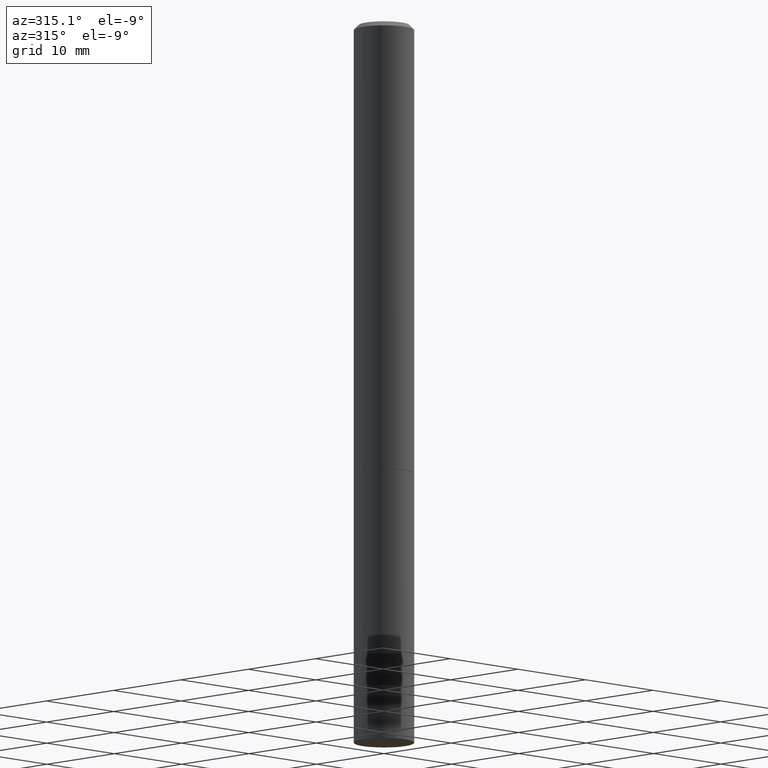
[diagram: clean part render]
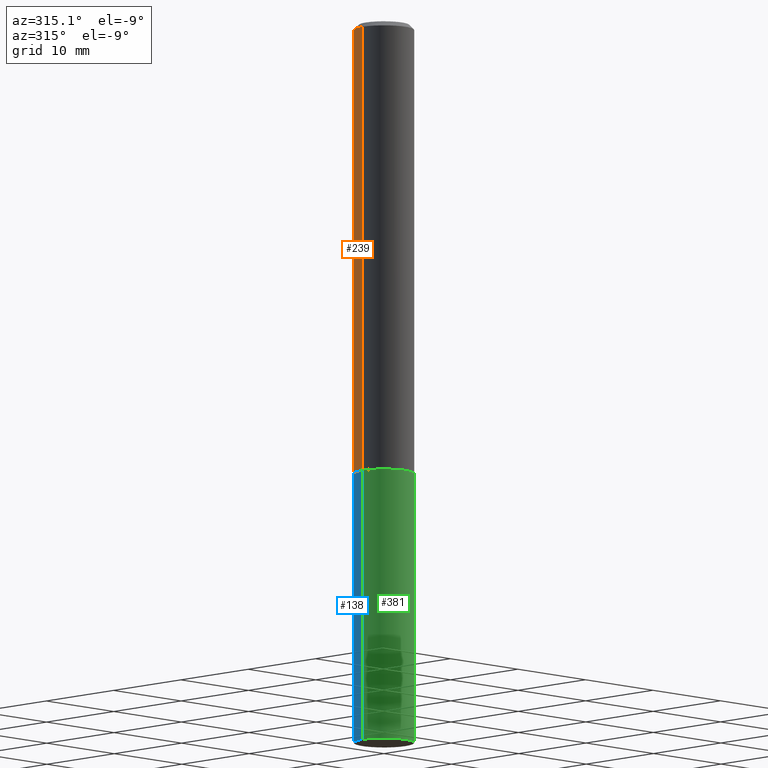
[diagram: same view with three faces highlighted in distinct colors, each labeled with its STEP entity id]
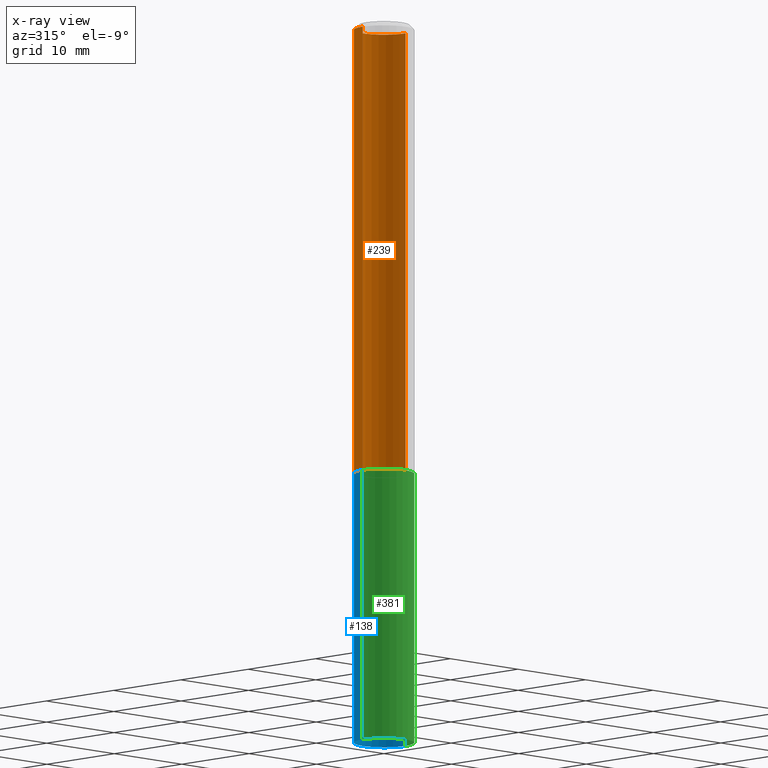
[diagram: x-ray of the same camera — body ghosted, the three highlighted faces saturated]
A machine part, auxiliary view with three faces highlighted in distinct colors.
The next image is the same camera in x-ray (body ghosted, the three faces saturated) — at least one of them is partly hidden behind the body in this view.
Their STEP definitions:

[orange] entity #239 — the highlighted cylindrical surface (edge-blend (fillet) strip) has radius 3.175 mm, axis along (-0, 0, 1).
#3 = CARTESIAN_POINT ( 'NONE',  ( 0.1249999999999998751, -8.728703347107825500E-16, 6.095220969744913435E-30 ) ) ;
#22 = CARTESIAN_POINT ( 'NONE',  ( -0.1249999999999998751, 8.881784197001243449E-16, -6.148668862818626622E-30 ) ) ;
#25 = CYLINDRICAL_SURFACE ( 'NONE', #360, 0.1249999999999998751 ) ;
#55 = VERTEX_POINT ( 'NONE', #356 ) ;
#59 = VECTOR ( 'NONE', #182, 39.37007874015748143 ) ;
#73 = VERTEX_POINT ( 'NONE', #117 ) ;
#82 = ORIENTED_EDGE ( 'NONE', *, *, #322, .T. ) ;
#90 = ORIENTED_EDGE ( 'NONE', *, *, #376, .F. ) ;
#93 = CARTESIAN_POINT ( 'NONE',  ( 0.1250000000000000000, -7.415906363702839039E-15, -1.874000000000000110 ) ) ;
#98 = EDGE_CURVE ( 'NONE', #73, #124, #328, .T. ) ;
#106 = EDGE_LOOP ( 'NONE', ( #82, #152, #90, #383 ) ) ;
#117 = CARTESIAN_POINT ( 'NONE',  ( -0.1250000000000000000, -2.418254408184330717E-15, -1.874000000000000110 ) ) ;
#124 = VERTEX_POINT ( 'NONE', #275 ) ;
#135 = AXIS2_PLACEMENT_3D ( 'NONE', #256, #150, #157 ) ;
#150 = DIRECTION ( 'NONE',  ( -2.445468806185136597E-29, 3.491481338843145583E-15, 1.000000000000000000 ) ) ;
#151 = FACE_OUTER_BOUND ( 'NONE', #106, .T. ) ;
#152 = ORIENTED_EDGE ( 'NONE', *, *, #98, .T. ) ;
#153 = DIRECTION ( 'NONE',  ( 1.000000000000000000, -6.982962677686270655E-15, 0.000000000000000000 ) ) ;
#157 = DIRECTION ( 'NONE',  ( 1.000000000000000000, -6.982962677686266711E-15, 0.000000000000000000 ) ) ;
#162 = CIRCLE ( 'NONE', #212, 0.1250000000000000000 ) ;
#182 = DIRECTION ( 'NONE',  ( -2.445468806185136877E-29, 3.491481338843145188E-15, 1.000000000000000000 ) ) ;
#187 = CARTESIAN_POINT ( 'NONE',  ( 0.000000000000000000, 0.000000000000000000, 0.000000000000000000 ) ) ;
#212 = AXIS2_PLACEMENT_3D ( 'NONE', #312, #286, #153 ) ;
#239 = ADVANCED_FACE ( 'NONE', ( #151 ), #25, .T. ) ;
#252 = LINE ( 'NONE', #3, #59 ) ;
#256 = CARTESIAN_POINT ( 'NONE',  ( 4.890937612370279289E-31, -6.982962677686299005E-17, -0.02000000000000002470 ) ) ;
#258 = EDGE_CURVE ( 'NONE', #366, #55, #252, .T. ) ;
#275 = CARTESIAN_POINT ( 'NONE',  ( -0.1249999999999997641, 8.030407079339186601E-16, -0.02000000000000002470 ) ) ;
#281 = DIRECTION ( 'NONE',  ( 1.000000000000000000, -6.982962677686267499E-15, 4.876176775795935793E-29 ) ) ;
#286 = DIRECTION ( 'NONE',  ( -2.445468806185136597E-29, 3.491481338843145583E-15, 1.000000000000000000 ) ) ;
#295 = DIRECTION ( 'NONE',  ( -2.445468806185136877E-29, 3.491481338843145188E-15, 1.000000000000000000 ) ) ;
#306 = CIRCLE ( 'NONE', #135, 0.1249999999999997641 ) ;
#312 = CARTESIAN_POINT ( 'NONE',  ( 4.582808542790945516E-29, -6.543036028992054911E-15, -1.874000000000000110 ) ) ;
#321 = VECTOR ( 'NONE', #295, 39.37007874015748143 ) ;
#322 = EDGE_CURVE ( 'NONE', #366, #73, #162, .T. ) ;
#328 = LINE ( 'NONE', #22, #321 ) ;
#336 = DIRECTION ( 'NONE',  ( -2.445468806185136597E-29, 3.491481338843145583E-15, 1.000000000000000000 ) ) ;
#356 = CARTESIAN_POINT ( 'NONE',  ( 0.1249999999999997641, -9.273918764983027713E-16, -0.02000000000000002470 ) ) ;
#360 = AXIS2_PLACEMENT_3D ( 'NONE', #187, #336, #281 ) ;
#366 = VERTEX_POINT ( 'NONE', #93 ) ;
#376 = EDGE_CURVE ( 'NONE', #55, #124, #306, .T. ) ;
#383 = ORIENTED_EDGE ( 'NONE', *, *, #258, .F. ) ;

[blue] entity #138 — the highlighted cylindrical surface (edge-blend (fillet) strip) has radius 3.175 mm, axis along (-0, 0, 1).
#12 = EDGE_CURVE ( 'NONE', #108, #20, #263, .T. ) ;
#16 = CARTESIAN_POINT ( 'NONE',  ( 0.1249999999999997918, -1.133200626625087780E-14, -3.000000000000000444 ) ) ;
#17 = DIRECTION ( 'NONE',  ( -2.445468806185136597E-29, 3.491481338843145583E-15, 1.000000000000000000 ) ) ;
#20 = VERTEX_POINT ( 'NONE', #206 ) ;
#23 = EDGE_LOOP ( 'NONE', ( #36, #183, #211, #337 ) ) ;
#36 = ORIENTED_EDGE ( 'NONE', *, *, #12, .T. ) ;
#48 = FACE_OUTER_BOUND ( 'NONE', #23, .T. ) ;
#54 = CARTESIAN_POINT ( 'NONE',  ( -0.1250000000000000000, 8.881784197001252323E-16, -6.148668862818632227E-30 ) ) ;
#61 = VERTEX_POINT ( 'NONE', #171 ) ;
#62 = AXIS2_PLACEMENT_3D ( 'NONE', #169, #17, #271 ) ;
#69 = VECTOR ( 'NONE', #141, 39.37007874015748143 ) ;
#81 = LINE ( 'NONE', #329, #69 ) ;
#84 = CIRCLE ( 'NONE', #62, 0.1250000000000000000 ) ;
#86 = EDGE_CURVE ( 'NONE', #61, #351, #84, .T. ) ;
#87 = CYLINDRICAL_SURFACE ( 'NONE', #233, 0.1250000000000000000 ) ;
#92 = AXIS2_PLACEMENT_3D ( 'NONE', #168, #242, #237 ) ;
#108 = VERTEX_POINT ( 'NONE', #16 ) ;
#114 = DIRECTION ( 'NONE',  ( 1.000000000000000000, -6.982962677686266711E-15, 4.876176775795935793E-29 ) ) ;
#125 = EDGE_CURVE ( 'NONE', #20, #351, #144, .T. ) ;
#138 = ADVANCED_FACE ( 'NONE', ( #48 ), #87, .T. ) ;
#140 = DIRECTION ( 'NONE',  ( -2.445468806185136597E-29, 3.491481338843145583E-15, 1.000000000000000000 ) ) ;
#141 = DIRECTION ( 'NONE',  ( -2.445468806185136877E-29, 3.491481338843145188E-15, 1.000000000000000000 ) ) ;
#144 = LINE ( 'NONE', #54, #314 ) ;
#165 = EDGE_CURVE ( 'NONE', #108, #61, #81, .T. ) ;
#168 = CARTESIAN_POINT ( 'NONE',  ( 7.336406418555409790E-29, -1.047444401652943635E-14, -3.000000000000000444 ) ) ;
#169 = CARTESIAN_POINT ( 'NONE',  ( 4.585254011597131119E-29, -6.546527510330898707E-15, -1.875000000000000000 ) ) ;
#171 = CARTESIAN_POINT ( 'NONE',  ( 0.1250000000000000000, -7.419397845041682046E-15, -1.875000000000000000 ) ) ;
#183 = ORIENTED_EDGE ( 'NONE', *, *, #125, .T. ) ;
#199 = DIRECTION ( 'NONE',  ( -2.445468806185136877E-29, 3.491481338843145188E-15, 1.000000000000000000 ) ) ;
#206 = CARTESIAN_POINT ( 'NONE',  ( -0.1249999999999997918, -9.601573681818656170E-15, -3.000000000000000444 ) ) ;
#211 = ORIENTED_EDGE ( 'NONE', *, *, #86, .F. ) ;
#233 = AXIS2_PLACEMENT_3D ( 'NONE', #238, #140, #114 ) ;
#237 = DIRECTION ( 'NONE',  ( 1.000000000000000000, -6.982962677686262766E-15, 0.000000000000000000 ) ) ;
#238 = CARTESIAN_POINT ( 'NONE',  ( 0.000000000000000000, 0.000000000000000000, 0.000000000000000000 ) ) ;
#242 = DIRECTION ( 'NONE',  ( -2.445468806185136597E-29, 3.491481338843145583E-15, 1.000000000000000000 ) ) ;
#263 = CIRCLE ( 'NONE', #92, 0.1250000000000000000 ) ;
#271 = DIRECTION ( 'NONE',  ( 1.000000000000000000, -6.982962677686262766E-15, 0.000000000000000000 ) ) ;
#314 = VECTOR ( 'NONE', #199, 39.37007874015748143 ) ;
#329 = CARTESIAN_POINT ( 'NONE',  ( 0.1250000000000000000, -8.728703347107833388E-16, 6.095220969744919741E-30 ) ) ;
#337 = ORIENTED_EDGE ( 'NONE', *, *, #165, .F. ) ;
#351 = VERTEX_POINT ( 'NONE', #363 ) ;
#363 = CARTESIAN_POINT ( 'NONE',  ( -0.1250000000000000000, -7.622307343730043087E-15, -1.875000000000000000 ) ) ;

[green] entity #381 — the highlighted cylindrical surface (edge-blend (fillet) strip) has radius 3.175 mm, axis along (-0, 0, 1).
#16 = CARTESIAN_POINT ( 'NONE',  ( 0.1249999999999997918, -1.133200626625087780E-14, -3.000000000000000444 ) ) ;
#20 = VERTEX_POINT ( 'NONE', #206 ) ;
#54 = CARTESIAN_POINT ( 'NONE',  ( -0.1250000000000000000, 8.881784197001252323E-16, -6.148668862818632227E-30 ) ) ;
#61 = VERTEX_POINT ( 'NONE', #171 ) ;
#65 = CARTESIAN_POINT ( 'NONE',  ( 7.336406418555409790E-29, -1.047444401652943635E-14, -3.000000000000000444 ) ) ;
#67 = DIRECTION ( 'NONE',  ( 1.000000000000000000, -6.982962677686266711E-15, 4.876176775795935793E-29 ) ) ;
#69 = VECTOR ( 'NONE', #141, 39.37007874015748143 ) ;
#81 = LINE ( 'NONE', #329, #69 ) ;
#95 = FACE_OUTER_BOUND ( 'NONE', #221, .T. ) ;
#104 = ORIENTED_EDGE ( 'NONE', *, *, #165, .T. ) ;
#108 = VERTEX_POINT ( 'NONE', #16 ) ;
#123 = CYLINDRICAL_SURFACE ( 'NONE', #355, 0.1250000000000000000 ) ;
#125 = EDGE_CURVE ( 'NONE', #20, #351, #144, .T. ) ;
#128 = DIRECTION ( 'NONE',  ( -2.445468806185136597E-29, 3.491481338843145583E-15, 1.000000000000000000 ) ) ;
#130 = CARTESIAN_POINT ( 'NONE',  ( 0.000000000000000000, 0.000000000000000000, 0.000000000000000000 ) ) ;
#132 = DIRECTION ( 'NONE',  ( 1.000000000000000000, -6.982962677686262766E-15, 0.000000000000000000 ) ) ;
#141 = DIRECTION ( 'NONE',  ( -2.445468806185136877E-29, 3.491481338843145188E-15, 1.000000000000000000 ) ) ;
#144 = LINE ( 'NONE', #54, #314 ) ;
#165 = EDGE_CURVE ( 'NONE', #108, #61, #81, .T. ) ;
#171 = CARTESIAN_POINT ( 'NONE',  ( 0.1250000000000000000, -7.419397845041682046E-15, -1.875000000000000000 ) ) ;
#177 = DIRECTION ( 'NONE',  ( 1.000000000000000000, -6.982962677686262766E-15, 0.000000000000000000 ) ) ;
#186 = CIRCLE ( 'NONE', #284, 0.1250000000000000000 ) ;
#193 = CIRCLE ( 'NONE', #197, 0.1250000000000000000 ) ;
#197 = AXIS2_PLACEMENT_3D ( 'NONE', #65, #245, #132 ) ;
#199 = DIRECTION ( 'NONE',  ( -2.445468806185136877E-29, 3.491481338843145188E-15, 1.000000000000000000 ) ) ;
#206 = CARTESIAN_POINT ( 'NONE',  ( -0.1249999999999997918, -9.601573681818656170E-15, -3.000000000000000444 ) ) ;
#207 = EDGE_CURVE ( 'NONE', #20, #108, #193, .T. ) ;
#214 = DIRECTION ( 'NONE',  ( -2.445468806185136597E-29, 3.491481338843145583E-15, 1.000000000000000000 ) ) ;
#221 = EDGE_LOOP ( 'NONE', ( #229, #309, #104, #230 ) ) ;
#229 = ORIENTED_EDGE ( 'NONE', *, *, #125, .F. ) ;
#230 = ORIENTED_EDGE ( 'NONE', *, *, #267, .F. ) ;
#245 = DIRECTION ( 'NONE',  ( -2.445468806185136597E-29, 3.491481338843145583E-15, 1.000000000000000000 ) ) ;
#267 = EDGE_CURVE ( 'NONE', #351, #61, #186, .T. ) ;
#284 = AXIS2_PLACEMENT_3D ( 'NONE', #368, #128, #177 ) ;
#309 = ORIENTED_EDGE ( 'NONE', *, *, #207, .T. ) ;
#314 = VECTOR ( 'NONE', #199, 39.37007874015748143 ) ;
#329 = CARTESIAN_POINT ( 'NONE',  ( 0.1250000000000000000, -8.728703347107833388E-16, 6.095220969744919741E-30 ) ) ;
#351 = VERTEX_POINT ( 'NONE', #363 ) ;
#355 = AXIS2_PLACEMENT_3D ( 'NONE', #130, #214, #67 ) ;
#363 = CARTESIAN_POINT ( 'NONE',  ( -0.1250000000000000000, -7.622307343730043087E-15, -1.875000000000000000 ) ) ;
#368 = CARTESIAN_POINT ( 'NONE',  ( 4.585254011597131119E-29, -6.546527510330898707E-15, -1.875000000000000000 ) ) ;
#381 = ADVANCED_FACE ( 'NONE', ( #95 ), #123, .T. ) ;